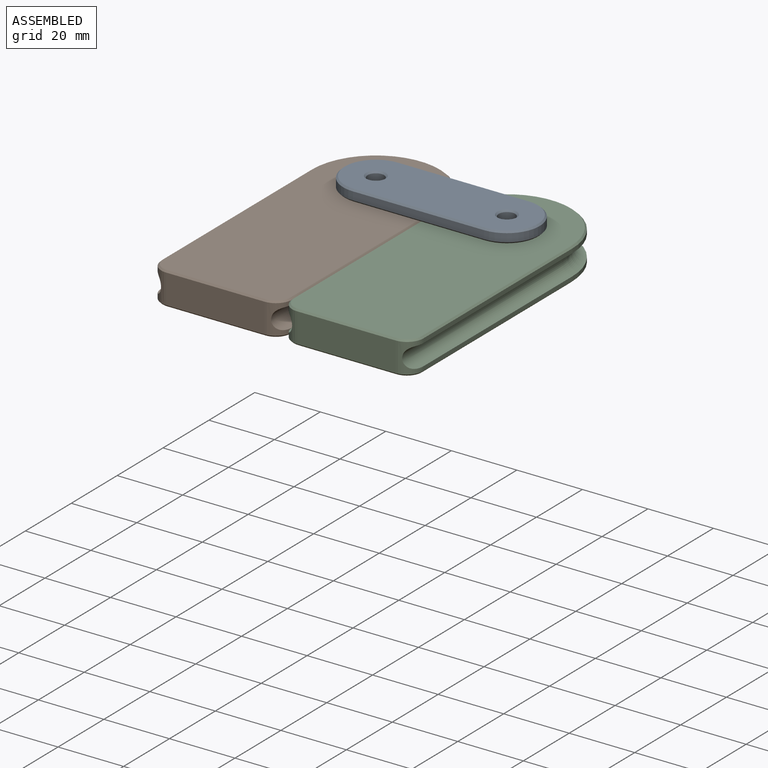
[diagram: assembled view]
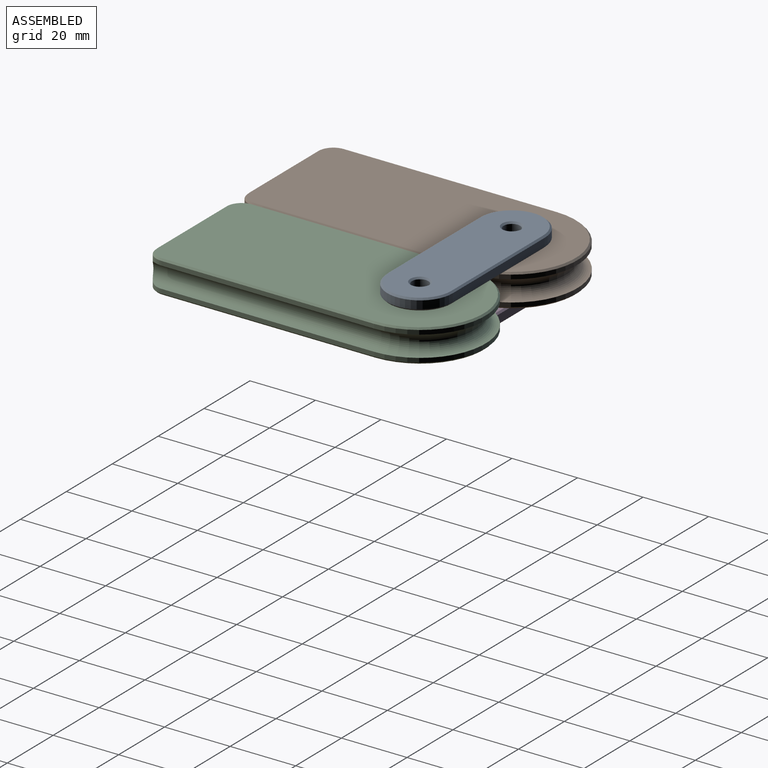
[diagram: assembled view, second angle]
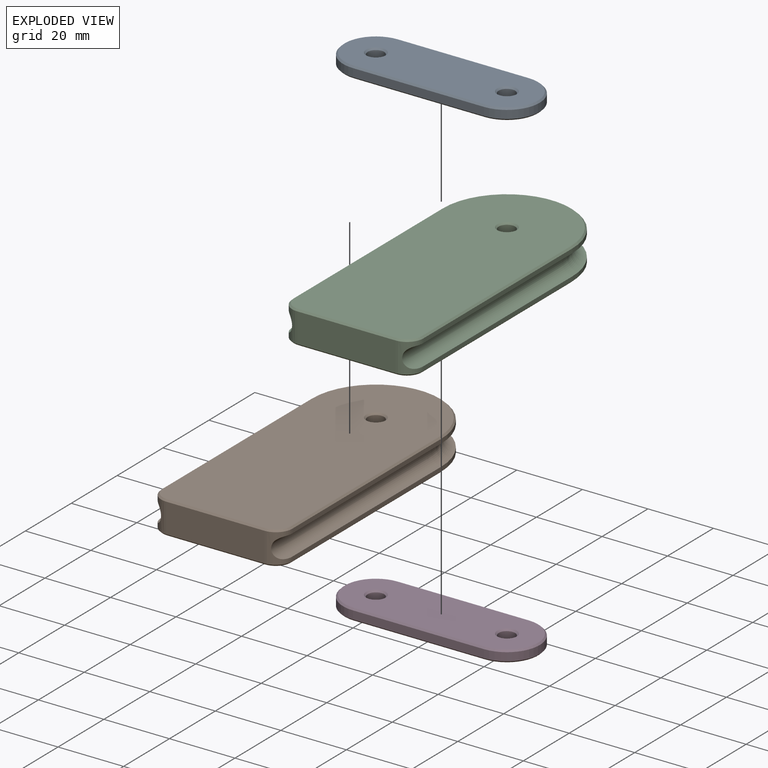
[diagram: exploded view]
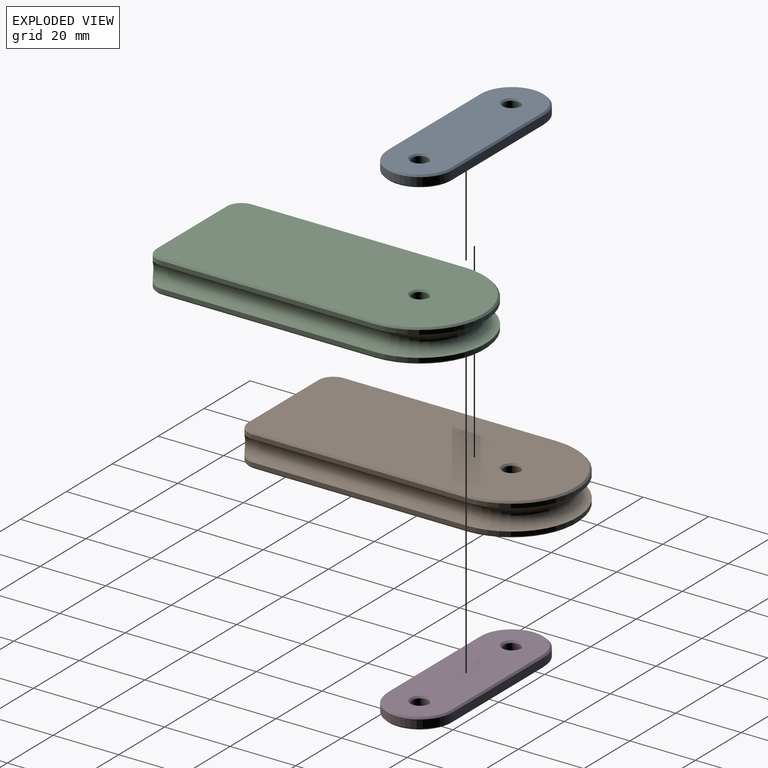
[diagram: exploded view, second angle]
ASSEMBLY  parts=4 mates=4
PART A: 20 faces, bbox 60x20x3.5 mm
  f0: plane 40x2.5mm, normal (0,1,0), area 100mm2, adj f1,f4,f8,f14
  f1: cylinder r=10mm len=20mm, axis (0,0,-1), area 78.5mm2, adj f0,f2,f10,f16
  f2: plane 40x2.5mm, normal (0,-1,0), area 100mm2, adj f1,f4,f11,f17
  f3: cylinder r=2.5mm len=5mm, axis (0,0,-1), area 39.3mm2, adj f13,f19
  f4: cylinder r=10mm len=20mm, axis (0,0,-1), area 78.5mm2, adj f0,f2,f9,f15
  f5: cylinder r=2.5mm len=5mm, axis (0,0,-1), area 39.3mm2, adj f12,f18
  f6: plane 59x19mm, normal (0,0,1), area 987mm2, adj f14,f15,f16,f17,f18,f19
  f7: plane 59x19mm, normal (0,0,-1), area 987mm2, adj f8,f9,f10,f11,f12,f13
  f8: plane 40x0.5mm, normal (0,0.71,-0.71), area 28.3mm2, adj f0,f7,f9,f10
  f9: cone r=10mm half-angle=45deg, axis (0,0,1), area 21.7mm2, adj f4,f7,f8,f11
  f10: cone r=10mm half-angle=45deg, axis (0,0,1), area 21.7mm2, adj f1,f7,f8,f11
  f11: plane 40x0.5mm, normal (0,-0.71,-0.71), area 28.3mm2, adj f2,f7,f9,f10
  f12: cone r=2.5mm half-angle=45deg, axis (0,0,-1), area 12.2mm2, adj f5,f7
  f13: cone r=3mm half-angle=45deg, axis (0,0,-1), area 12.2mm2, adj f3,f7
  f14: plane 40x0.5mm, normal (0,0.71,0.71), area 28.3mm2, adj f0,f6,f15,f16
  f15: cone r=9.5mm half-angle=45deg, axis (0,0,-1), area 21.7mm2, adj f4,f6,f14,f17
  f16: cone r=9.5mm half-angle=45deg, axis (0,0,-1), area 21.7mm2, adj f1,f6,f14,f17
  f17: plane 40x0.5mm, normal (0,-0.71,0.71), area 28.3mm2, adj f2,f6,f15,f16
  f18: cone r=3mm half-angle=45deg, axis (0,0,1), area 12.2mm2, adj f5,f6
  f19: cone r=2.5mm half-angle=45deg, axis (0,0,1), area 12.2mm2, adj f3,f6
PART B: 29 faces, bbox 48.2x94.1x10 mm
  f0: plane 65x1.3mm, normal (1,0,0), area 84.5mm2, adj f5,f12,f14,f16
  f1: cylinder r=20mm len=40mm, axis (0,0,-1), area 81.7mm2, adj f2,f4,f10,f25
  f2: plane 65x1.3mm, normal (-1,0,0), area 84.5mm2, adj f1,f11,f13,f27
  f3: plane 30x9mm, normal (0,-1,0), area 270mm2, adj f13,f14,f17,f24
  f4: plane 65x1.3mm, normal (1,0,0), area 84.5mm2, adj f1,f12,f14,f23
  f5: cylinder r=20mm len=40mm, axis (0,0,-1), area 81.7mm2, adj f0,f6,f10,f18
  f6: plane 65x1.3mm, normal (-1,0,0), area 84.5mm2, adj f5,f11,f13,f20
  f7: cylinder r=2.5mm len=9mm, axis (0,0,-1), area 141.4mm2, adj f21,f28
  f8: plane 89x39mm, normal (0,0,1), area 3270.8mm2, adj f22,f23,f24,f25,f26,f27,f28
  f9: plane 89x39mm, normal (0,0,-1), area 3270.8mm2, adj f15,f16,f17,f18,f19,f20,f21
  f10: torus R=20mm, axis (0,0,1), area 567.3mm2, adj f1,f5,f11,f12
  f11: cylinder r=3.2mm len=69.67mm, axis (0,-1,0), area 691.4mm2, adj f2,f6,f10,f13
  f12: cylinder r=3.2mm len=69.67mm, axis (0,1,0), area 691.4mm2, adj f0,f4,f10,f14
  f13: cylinder r=5mm len=9mm, axis (0,0,1), area 37.4mm2, adj f2,f3,f6,f11,f19,f26
  f14: cylinder r=5mm len=9mm, axis (0,0,-1), area 37.4mm2, adj f0,f3,f4,f12,f15,f22
  f15: cone r=4.5mm half-angle=45deg, axis (0,0,1), area 5.3mm2, adj f9,f14,f16,f17
  f16: plane 65x0.5mm, normal (0.71,0,-0.71), area 46mm2, adj f0,f9,f15,f18
  f17: plane 30x0.5mm, normal (0,-0.71,-0.71), area 21.2mm2, adj f3,f9,f15,f19
  f18: cone r=20mm half-angle=45deg, axis (0,0,1), area 43.9mm2, adj f5,f9,f16,f20
  f19: cone r=4.5mm half-angle=45deg, axis (0,0,1), area 5.3mm2, adj f9,f13,f17,f20
  f20: plane 65x0.5mm, normal (-0.71,0,-0.71), area 46mm2, adj f6,f9,f18,f19
  f21: cone r=3mm half-angle=45deg, axis (0,0,-1), area 12.2mm2, adj f7,f9
  f22: cone r=4.5mm half-angle=45deg, axis (0,0,-1), area 5.3mm2, adj f8,f14,f23,f24
  f23: plane 65x0.5mm, normal (0.71,0,0.71), area 46mm2, adj f4,f8,f22,f25
  f24: plane 30x0.5mm, normal (0,-0.71,0.71), area 21.2mm2, adj f3,f8,f22,f26
  f25: cone r=19.5mm half-angle=45deg, axis (0,0,-1), area 43.9mm2, adj f1,f8,f23,f27
  f26: cone r=4.5mm half-angle=45deg, axis (0,0,-1), area 5.3mm2, adj f8,f13,f24,f27
  f27: plane 65x0.5mm, normal (-0.71,0,0.71), area 46mm2, adj f2,f8,f25,f26
  f28: cone r=2.5mm half-angle=45deg, axis (0,0,1), area 12.2mm2, adj f7,f8
PART C: same geometry as B
PART D: same geometry as A
PLACE A rot(axis=(0,0,-1),180deg) t=(0,70,5)mm
PLACE B rot(axis=(0.01,0,1),0deg) t=(-40,70,0)mm
PLACE C t=(0,70,0)mm
PLACE D rot(axis=(0,0,-1),180deg) t=(0,70,-8.5)mm
MATE revolute D.f5 <-> B.f7  axis (0,0,1) through (-40,70,-5)mm
MATE revolute B.f7 <-> A.f5  axis (0,0,1) through (-40,70,5)mm
MATE revolute A.f3 <-> C.f7  axis (0,0,-1) through (0,70,5)mm
MATE revolute D.f3 <-> C.f1  axis (0,0,1) through (0,70,-5)mm
